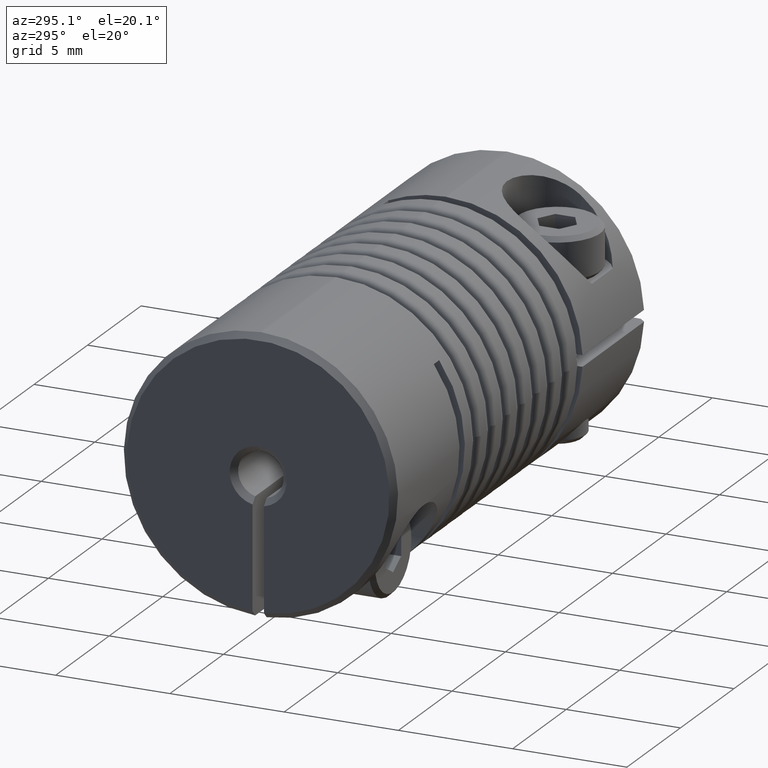
[diagram: clean part render]
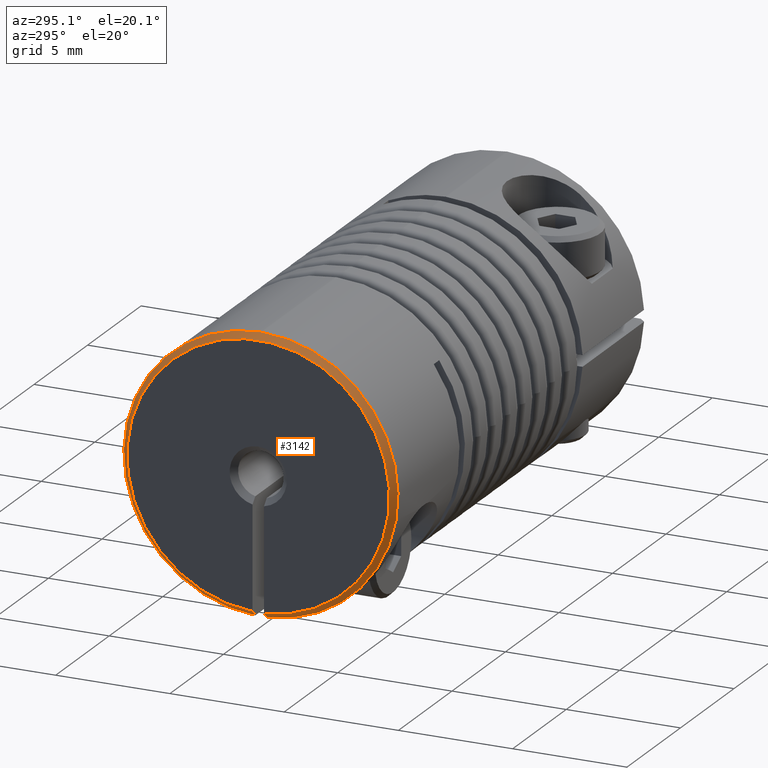
[diagram: same view with one face highlighted and labeled with its STEP entity id]
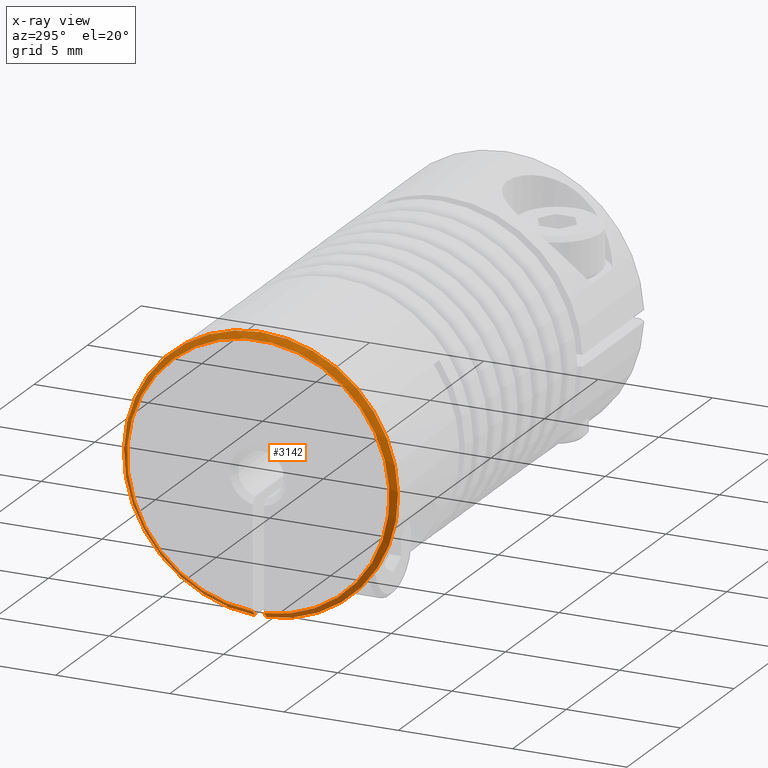
[diagram: x-ray of the same camera — body ghosted, the highlighted face saturated]
A machine part, auxiliary view. The second image highlights one B-rep face of the part: STEP entity #3142.
The next image is the same camera in x-ray: the body ghosted, the highlighted face saturated — about 0% of this face is hidden behind the body in this view.
In plain terms, the highlighted conical surface has half-angle 45 deg.
Its self-contained STEP definition (entity closure, byte-faithful):
#8 = AXIS2_PLACEMENT_3D ( 'NONE', #4831, #4859, #4860 ) ;
#32 = AXIS2_PLACEMENT_3D ( 'NONE', #4943, #4950, #4951 ) ;
#34 = AXIS2_PLACEMENT_3D ( 'NONE', #206, #211, #212 ) ;
#112 = AXIS2_PLACEMENT_3D ( 'NONE', #456, #455, #453 ) ;
#199 = CARTESIAN_POINT ( 'NONE',  ( -11.75000000000000000, -0.2500000000000000000, -5.740558857811660000 ) ) ;
#206 = CARTESIAN_POINT ( 'NONE',  ( -11.75000000000000000, 0.0000000000000000000, 0.0000000000000000000 ) ) ;
#207 = CARTESIAN_POINT ( 'NONE',  ( -11.66533503391573000, -0.2500000000000000000, -5.825304072897859300 ) ) ;
#208 = CARTESIAN_POINT ( 'NONE',  ( -11.58066829519379800, -0.2500000000000000000, -5.910047516325473500 ) ) ;
#209 = CARTESIAN_POINT ( 'NONE',  ( -11.49599999999999500, -0.2500000000000000000, -5.994789404140901100 ) ) ;
#211 = DIRECTION ( 'NONE',  ( -1.000000000000000000, -0.0000000000000000000, -0.0000000000000000000 ) ) ;
#212 = DIRECTION ( 'NONE',  ( 0.0000000000000000000, 0.0000000000000000000, -1.000000000000000000 ) ) ;
#218 = CARTESIAN_POINT ( 'NONE',  ( -11.75000000000000000, 0.2500000000000000000, -5.740558857811660000 ) ) ;
#224 = CARTESIAN_POINT ( 'NONE',  ( -11.66533503391573000, 0.2500000000000000000, -5.825304072897859300 ) ) ;
#225 = CARTESIAN_POINT ( 'NONE',  ( -11.58066829519379800, 0.2500000000000000000, -5.910047516325473500 ) ) ;
#226 = CARTESIAN_POINT ( 'NONE',  ( -11.49599999999999500, 0.2500000000000000000, -5.994789404140901100 ) ) ;
#453 = DIRECTION ( 'NONE',  ( 0.0000000000000000000, 0.0000000000000000000, -1.000000000000000000 ) ) ;
#455 = DIRECTION ( 'NONE',  ( 1.000000000000000000, -0.0000000000000000000, -0.0000000000000000000 ) ) ;
#456 = CARTESIAN_POINT ( 'NONE',  ( -11.49599999999999500, 0.0000000000000000000, 0.0000000000000000000 ) ) ;
#735 = FACE_OUTER_BOUND ( 'NONE', #2217, .T. ) ;
#743 = CONICAL_SURFACE ( 'NONE', #112, 6.000000000000000900, 0.7853981633974568300 ) ;
#1345 = VERTEX_POINT ( 'NONE', #1599 ) ;
#1346 = VERTEX_POINT ( 'NONE', #1600 ) ;
#1357 = VERTEX_POINT ( 'NONE', #1611 ) ;
#1366 = VERTEX_POINT ( 'NONE', #1620 ) ;
#1368 = VERTEX_POINT ( 'NONE', #1622 ) ;
#1599 = CARTESIAN_POINT ( 'NONE',  ( -11.49599999999999500, 0.2500000000000000000, -5.994789404140901100 ) ) ;
#1600 = CARTESIAN_POINT ( 'NONE',  ( -11.49599999999999500, 0.0000000000000000000, 6.000000000000000900 ) ) ;
#1611 = CARTESIAN_POINT ( 'NONE',  ( -11.49599999999999500, -0.2500000000000000000, -5.994789404140901100 ) ) ;
#1620 = CARTESIAN_POINT ( 'NONE',  ( -11.75000000000000000, -0.2500000000000000000, -5.740558857811660000 ) ) ;
#1622 = CARTESIAN_POINT ( 'NONE',  ( -11.75000000000000000, 0.2500000000000000000, -5.740558857811660000 ) ) ;
#2064 = EDGE_CURVE ( 'NONE', #1345, #1346, #5125, .T. ) ;
#2099 = EDGE_CURVE ( 'NONE', #1346, #1357, #5172, .T. ) ;
#2114 = EDGE_CURVE ( 'NONE', #1366, #1357, #4374, .T. ) ;
#2115 = EDGE_CURVE ( 'NONE', #1366, #1368, #5191, .T. ) ;
#2120 = EDGE_CURVE ( 'NONE', #1368, #1345, #4376, .T. ) ;
#2217 = EDGE_LOOP ( 'NONE', ( #2946, #2947, #2948, #2949, #2950 ) ) ;
#2946 = ORIENTED_EDGE ( 'NONE', *, *, #2115, .F. ) ;
#2947 = ORIENTED_EDGE ( 'NONE', *, *, #2114, .T. ) ;
#2948 = ORIENTED_EDGE ( 'NONE', *, *, #2099, .F. ) ;
#2949 = ORIENTED_EDGE ( 'NONE', *, *, #2064, .F. ) ;
#2950 = ORIENTED_EDGE ( 'NONE', *, *, #2120, .F. ) ;
#3142 = ADVANCED_FACE ( 'NONE', ( #735 ), #743, .T. ) ;
#4374 = B_SPLINE_CURVE_WITH_KNOTS ( 'NONE', 3,
 ( #199, #207, #208, #209 ),
 .UNSPECIFIED., .F., .F.,
 ( 4, 4 ),
 ( 0.006776137763241251200, 0.007135509474145740800 ),
 .UNSPECIFIED. ) ;
#4376 = B_SPLINE_CURVE_WITH_KNOTS ( 'NONE', 3,
 ( #218, #224, #225, #226 ),
 .UNSPECIFIED., .F., .F.,
 ( 4, 4 ),
 ( 0.006776137763241251200, 0.007135509474145740800 ),
 .UNSPECIFIED. ) ;
#4831 = CARTESIAN_POINT ( 'NONE',  ( -11.49599999999999500, 0.0000000000000000000, 0.0000000000000000000 ) ) ;
#4859 = DIRECTION ( 'NONE',  ( 1.000000000000000000, -0.0000000000000000000, -0.0000000000000000000 ) ) ;
#4860 = DIRECTION ( 'NONE',  ( 0.0000000000000000000, 0.0000000000000000000, -1.000000000000000000 ) ) ;
#4943 = CARTESIAN_POINT ( 'NONE',  ( -11.49599999999999500, 0.0000000000000000000, 0.0000000000000000000 ) ) ;
#4950 = DIRECTION ( 'NONE',  ( 1.000000000000000000, -0.0000000000000000000, -0.0000000000000000000 ) ) ;
#4951 = DIRECTION ( 'NONE',  ( 0.0000000000000000000, 0.0000000000000000000, -1.000000000000000000 ) ) ;
#5125 = CIRCLE ( 'NONE', #8, 6.000000000000000900 ) ;
#5172 = CIRCLE ( 'NONE', #32, 6.000000000000000900 ) ;
#5191 = CIRCLE ( 'NONE', #34, 5.745999999999992400 ) ;